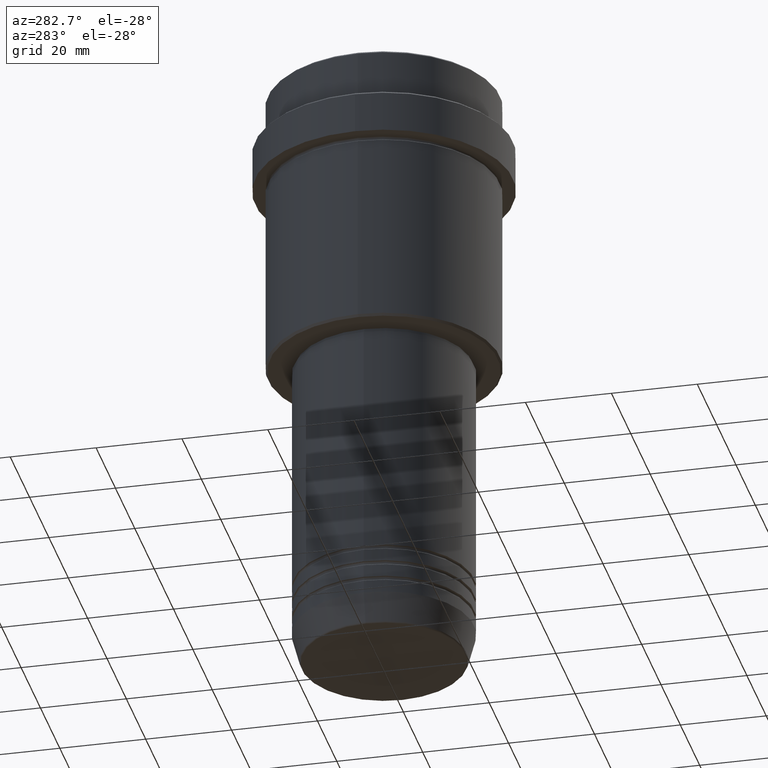
[diagram: clean part render]
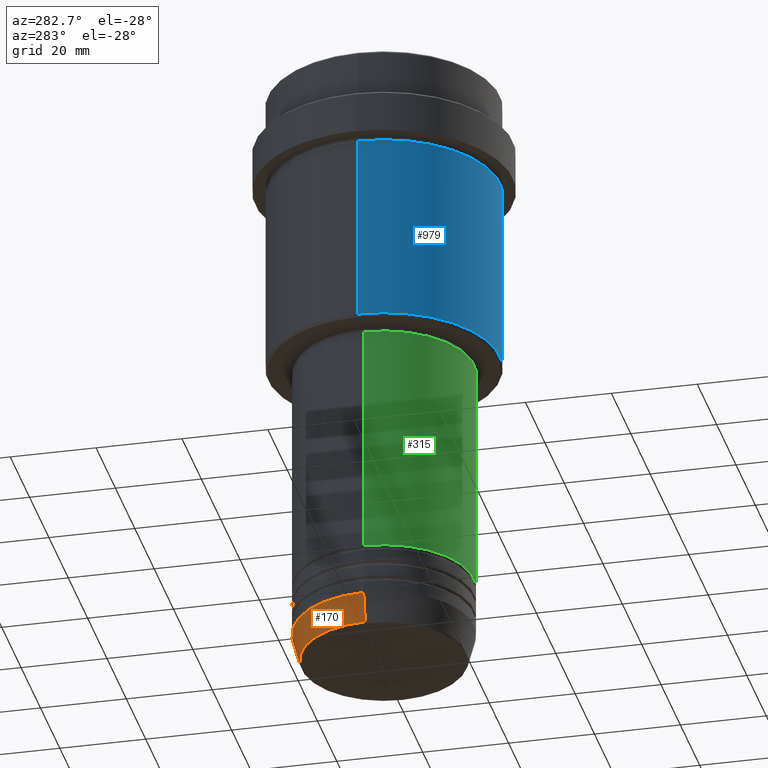
[diagram: same view with three faces highlighted in distinct colors, each labeled with its STEP entity id]
A machine part, auxiliary view with three faces highlighted in distinct colors.
Their STEP definitions:

[orange] entity #170 — the highlighted conical surface has half-angle 15 deg.
#46 = CIRCLE ( 'NONE', #1018, 21.00000000000000000 ) ;
#53 = DIRECTION ( 'NONE',  ( -0.2588190451025209060, 3.169619151431766790E-17, 0.9659258262890682012 ) ) ;
#118 = DIRECTION ( 'NONE',  ( 1.000000000000000000, 0.000000000000000000, 0.000000000000000000 ) ) ;
#145 = ORIENTED_EDGE ( 'NONE', *, *, #1076, .T. ) ;
#160 = FACE_OUTER_BOUND ( 'NONE', #1156, .T. ) ;
#170 = ADVANCED_FACE ( 'NONE', ( #160 ), #382, .T. ) ;
#219 = ORIENTED_EDGE ( 'NONE', *, *, #933, .T. ) ;
#287 = DIRECTION ( 'NONE',  ( -0.000000000000000000, -0.000000000000000000, 1.000000000000000000 ) ) ;
#301 = VERTEX_POINT ( 'NONE', #977 ) ;
#321 = VERTEX_POINT ( 'NONE', #1096 ) ;
#330 = CARTESIAN_POINT ( 'NONE',  ( 0.000000000000000000, 0.000000000000000000, -142.6294095225512706 ) ) ;
#357 = DIRECTION ( 'NONE',  ( 0.2588190451025209060, 0.000000000000000000, 0.9659258262890682012 ) ) ;
#364 = VECTOR ( 'NONE', #53, 1000.000000000000000 ) ;
#382 = CONICAL_SURFACE ( 'NONE', #1181, 21.00000000000000000, 0.2617993877991495744 ) ;
#427 = DIRECTION ( 'NONE',  ( -0.000000000000000000, -0.000000000000000000, 1.000000000000000000 ) ) ;
#508 = AXIS2_PLACEMENT_3D ( 'NONE', #330, #427, #598 ) ;
#598 = DIRECTION ( 'NONE',  ( 1.000000000000000000, 0.000000000000000000, 0.000000000000000000 ) ) ;
#603 = CARTESIAN_POINT ( 'NONE',  ( 21.00000000000000000, 0.000000000000000000, -136.0000000000000000 ) ) ;
#671 = CARTESIAN_POINT ( 'NONE',  ( 0.000000000000000000, 0.000000000000000000, -136.0000000000000000 ) ) ;
#695 = LINE ( 'NONE', #603, #1102 ) ;
#698 = EDGE_CURVE ( 'NONE', #978, #1026, #695, .T. ) ;
#789 = CARTESIAN_POINT ( 'NONE',  ( 19.22365507213719127, 0.000000000000000000, -142.6294095225512706 ) ) ;
#853 = CARTESIAN_POINT ( 'NONE',  ( 21.00000000000000000, 0.000000000000000000, -136.0000000000000000 ) ) ;
#926 = CARTESIAN_POINT ( 'NONE',  ( 0.000000000000000000, 0.000000000000000000, -136.0000000000000000 ) ) ;
#933 = EDGE_CURVE ( 'NONE', #321, #301, #1268, .T. ) ;
#943 = DIRECTION ( 'NONE',  ( 1.000000000000000000, 0.000000000000000000, 0.000000000000000000 ) ) ;
#977 = CARTESIAN_POINT ( 'NONE',  ( -21.00000000000000000, 2.571758278209441661E-15, -136.0000000000000000 ) ) ;
#978 = VERTEX_POINT ( 'NONE', #789 ) ;
#1018 = AXIS2_PLACEMENT_3D ( 'NONE', #671, #1212, #118 ) ;
#1026 = VERTEX_POINT ( 'NONE', #853 ) ;
#1039 = CIRCLE ( 'NONE', #508, 19.22365507213719127 ) ;
#1045 = CARTESIAN_POINT ( 'NONE',  ( -21.00000000000000000, 2.571758278209441661E-15, -136.0000000000000000 ) ) ;
#1076 = EDGE_CURVE ( 'NONE', #978, #321, #1039, .T. ) ;
#1096 = CARTESIAN_POINT ( 'NONE',  ( -19.22365507213719127, 2.462988521705000655E-15, -142.6294095225512706 ) ) ;
#1102 = VECTOR ( 'NONE', #357, 1000.000000000000000 ) ;
#1156 = EDGE_LOOP ( 'NONE', ( #145, #219, #1202, #1175 ) ) ;
#1175 = ORIENTED_EDGE ( 'NONE', *, *, #698, .F. ) ;
#1181 = AXIS2_PLACEMENT_3D ( 'NONE', #926, #287, #943 ) ;
#1202 = ORIENTED_EDGE ( 'NONE', *, *, #1345, .F. ) ;
#1212 = DIRECTION ( 'NONE',  ( -0.000000000000000000, -0.000000000000000000, 1.000000000000000000 ) ) ;
#1268 = LINE ( 'NONE', #1045, #364 ) ;
#1345 = EDGE_CURVE ( 'NONE', #1026, #301, #46, .T. ) ;

[blue] entity #979 — the highlighted cylindrical surface (partial cylindrical patch) has radius 27 mm, axis along (-0, -0, 1).
#26 = VERTEX_POINT ( 'NONE', #1218 ) ;
#58 = CARTESIAN_POINT ( 'NONE',  ( 26.99999999999999645, 0.000000000000000000, -67.49999999999998579 ) ) ;
#109 = VECTOR ( 'NONE', #1147, 1000.000000000000000 ) ;
#153 = CARTESIAN_POINT ( 'NONE',  ( -26.99999999999999645, 3.306546357697853339E-15, -67.49999999999998579 ) ) ;
#178 = VECTOR ( 'NONE', #223, 1000.000000000000000 ) ;
#218 = ORIENTED_EDGE ( 'NONE', *, *, #834, .T. ) ;
#223 = DIRECTION ( 'NONE',  ( -0.000000000000000000, -0.000000000000000000, 1.000000000000000000 ) ) ;
#236 = VERTEX_POINT ( 'NONE', #58 ) ;
#237 = VERTEX_POINT ( 'NONE', #1146 ) ;
#303 = DIRECTION ( 'NONE',  ( 1.000000000000000000, 0.000000000000000000, 0.000000000000000000 ) ) ;
#354 = LINE ( 'NONE', #791, #109 ) ;
#435 = CARTESIAN_POINT ( 'NONE',  ( -26.99999999999999645, 3.306546357697853339E-15, 0.000000000000000000 ) ) ;
#448 = CARTESIAN_POINT ( 'NONE',  ( 0.000000000000000000, 0.000000000000000000, 0.000000000000000000 ) ) ;
#501 = CARTESIAN_POINT ( 'NONE',  ( 0.000000000000000000, 0.000000000000000000, -67.49999999999998579 ) ) ;
#517 = DIRECTION ( 'NONE',  ( -0.000000000000000000, -0.000000000000000000, 1.000000000000000000 ) ) ;
#547 = CIRCLE ( 'NONE', #617, 26.99999999999999645 ) ;
#562 = DIRECTION ( 'NONE',  ( -0.000000000000000000, -0.000000000000000000, 1.000000000000000000 ) ) ;
#617 = AXIS2_PLACEMENT_3D ( 'NONE', #501, #841, #1065 ) ;
#714 = VERTEX_POINT ( 'NONE', #153 ) ;
#740 = EDGE_LOOP ( 'NONE', ( #1188, #218, #1043, #888 ) ) ;
#750 = AXIS2_PLACEMENT_3D ( 'NONE', #448, #562, #1006 ) ;
#762 = EDGE_CURVE ( 'NONE', #236, #26, #354, .T. ) ;
#791 = CARTESIAN_POINT ( 'NONE',  ( 26.99999999999999645, 0.000000000000000000, 0.000000000000000000 ) ) ;
#834 = EDGE_CURVE ( 'NONE', #714, #236, #547, .T. ) ;
#841 = DIRECTION ( 'NONE',  ( -0.000000000000000000, -0.000000000000000000, 1.000000000000000000 ) ) ;
#846 = AXIS2_PLACEMENT_3D ( 'NONE', #914, #517, #303 ) ;
#875 = EDGE_CURVE ( 'NONE', #714, #237, #1236, .T. ) ;
#888 = ORIENTED_EDGE ( 'NONE', *, *, #893, .F. ) ;
#893 = EDGE_CURVE ( 'NONE', #237, #26, #1037, .T. ) ;
#914 = CARTESIAN_POINT ( 'NONE',  ( 0.000000000000000000, 0.000000000000000000, -23.00000000000000000 ) ) ;
#979 = ADVANCED_FACE ( 'NONE', ( #1413 ), #998, .T. ) ;
#998 = CYLINDRICAL_SURFACE ( 'NONE', #750, 26.99999999999999645 ) ;
#1006 = DIRECTION ( 'NONE',  ( 1.000000000000000000, 0.000000000000000000, 0.000000000000000000 ) ) ;
#1037 = CIRCLE ( 'NONE', #846, 26.99999999999999645 ) ;
#1043 = ORIENTED_EDGE ( 'NONE', *, *, #762, .T. ) ;
#1065 = DIRECTION ( 'NONE',  ( -1.000000000000000000, 0.000000000000000000, 0.000000000000000000 ) ) ;
#1146 = CARTESIAN_POINT ( 'NONE',  ( -26.99999999999999645, 3.306546357697853339E-15, -23.00000000000000000 ) ) ;
#1147 = DIRECTION ( 'NONE',  ( -0.000000000000000000, -0.000000000000000000, 1.000000000000000000 ) ) ;
#1188 = ORIENTED_EDGE ( 'NONE', *, *, #875, .F. ) ;
#1218 = CARTESIAN_POINT ( 'NONE',  ( 26.99999999999999645, 0.000000000000000000, -23.00000000000000000 ) ) ;
#1236 = LINE ( 'NONE', #435, #178 ) ;
#1413 = FACE_OUTER_BOUND ( 'NONE', #740, .T. ) ;

[green] entity #315 — the highlighted cylindrical surface (partial cylindrical patch) has radius 21 mm, axis along (-0, -0, 1).
#70 = ORIENTED_EDGE ( 'NONE', *, *, #1213, .T. ) ;
#74 = DIRECTION ( 'NONE',  ( 1.000000000000000000, 0.000000000000000000, 0.000000000000000000 ) ) ;
#175 = CARTESIAN_POINT ( 'NONE',  ( 20.99999999999999645, 0.000000000000000000, -69.00000000000001421 ) ) ;
#177 = CARTESIAN_POINT ( 'NONE',  ( 0.000000000000000000, 0.000000000000000000, -123.9999999999999005 ) ) ;
#209 = CYLINDRICAL_SURFACE ( 'NONE', #842, 20.99999999999999645 ) ;
#231 = EDGE_LOOP ( 'NONE', ( #348, #928, #70, #866 ) ) ;
#270 = CARTESIAN_POINT ( 'NONE',  ( 21.00000000000000000, 0.000000000000000000, -123.9999999999999005 ) ) ;
#298 = DIRECTION ( 'NONE',  ( -0.000000000000000000, -0.000000000000000000, 1.000000000000000000 ) ) ;
#299 = VERTEX_POINT ( 'NONE', #1192 ) ;
#315 = ADVANCED_FACE ( 'NONE', ( #438 ), #209, .T. ) ;
#348 = ORIENTED_EDGE ( 'NONE', *, *, #381, .F. ) ;
#381 = EDGE_CURVE ( 'NONE', #748, #299, #1078, .T. ) ;
#426 = DIRECTION ( 'NONE',  ( -0.000000000000000000, -0.000000000000000000, 1.000000000000000000 ) ) ;
#438 = FACE_OUTER_BOUND ( 'NONE', #231, .T. ) ;
#481 = AXIS2_PLACEMENT_3D ( 'NONE', #836, #1370, #1410 ) ;
#635 = CARTESIAN_POINT ( 'NONE',  ( 20.99999999999999645, 0.000000000000000000, 0.000000000000000000 ) ) ;
#638 = CARTESIAN_POINT ( 'NONE',  ( -20.99999999999999645, 2.571758278209441267E-15, 0.000000000000000000 ) ) ;
#650 = DIRECTION ( 'NONE',  ( 1.000000000000000000, 0.000000000000000000, 0.000000000000000000 ) ) ;
#681 = VERTEX_POINT ( 'NONE', #270 ) ;
#708 = VECTOR ( 'NONE', #732, 1000.000000000000000 ) ;
#732 = DIRECTION ( 'NONE',  ( -0.000000000000000000, -0.000000000000000000, 1.000000000000000000 ) ) ;
#748 = VERTEX_POINT ( 'NONE', #1250 ) ;
#768 = VECTOR ( 'NONE', #298, 1000.000000000000000 ) ;
#826 = EDGE_CURVE ( 'NONE', #299, #1332, #1103, .T. ) ;
#836 = CARTESIAN_POINT ( 'NONE',  ( 0.000000000000000000, 0.000000000000000000, -69.00000000000001421 ) ) ;
#842 = AXIS2_PLACEMENT_3D ( 'NONE', #1288, #426, #650 ) ;
#866 = ORIENTED_EDGE ( 'NONE', *, *, #826, .F. ) ;
#928 = ORIENTED_EDGE ( 'NONE', *, *, #938, .T. ) ;
#938 = EDGE_CURVE ( 'NONE', #748, #681, #1341, .T. ) ;
#1071 = DIRECTION ( 'NONE',  ( -0.000000000000000000, -0.000000000000000000, 1.000000000000000000 ) ) ;
#1078 = LINE ( 'NONE', #638, #768 ) ;
#1080 = LINE ( 'NONE', #635, #708 ) ;
#1103 = CIRCLE ( 'NONE', #481, 20.99999999999999645 ) ;
#1192 = CARTESIAN_POINT ( 'NONE',  ( -20.99999999999999645, 2.571758278209441267E-15, -69.00000000000001421 ) ) ;
#1213 = EDGE_CURVE ( 'NONE', #681, #1332, #1080, .T. ) ;
#1250 = CARTESIAN_POINT ( 'NONE',  ( -21.00000000000000000, 2.571758278209441661E-15, -123.9999999999999005 ) ) ;
#1288 = CARTESIAN_POINT ( 'NONE',  ( 0.000000000000000000, 0.000000000000000000, 0.000000000000000000 ) ) ;
#1332 = VERTEX_POINT ( 'NONE', #175 ) ;
#1341 = CIRCLE ( 'NONE', #1405, 21.00000000000000000 ) ;
#1370 = DIRECTION ( 'NONE',  ( -0.000000000000000000, -0.000000000000000000, 1.000000000000000000 ) ) ;
#1405 = AXIS2_PLACEMENT_3D ( 'NONE', #177, #1071, #74 ) ;
#1410 = DIRECTION ( 'NONE',  ( 1.000000000000000000, 0.000000000000000000, 0.000000000000000000 ) ) ;